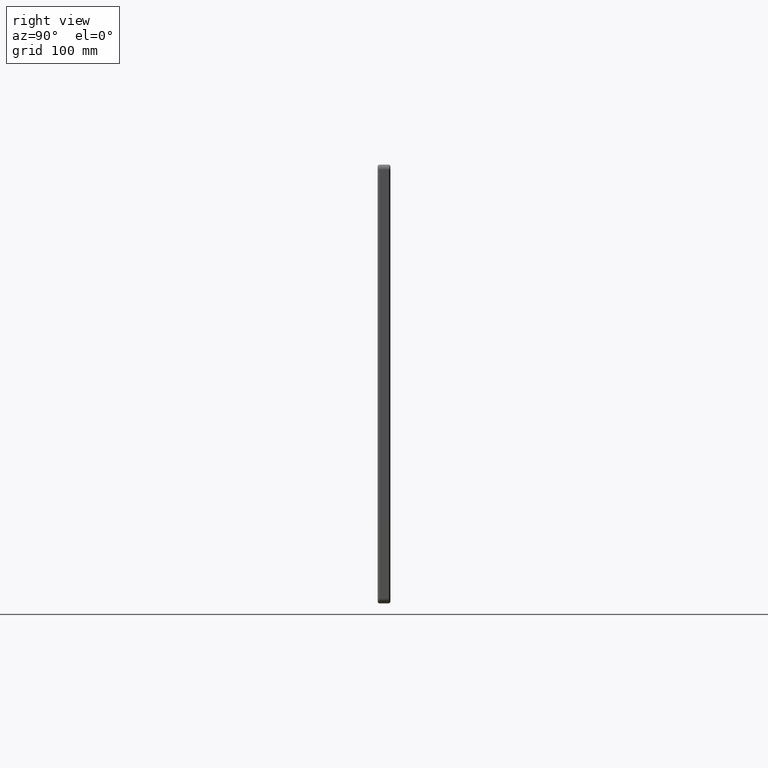
[diagram: clean part render]
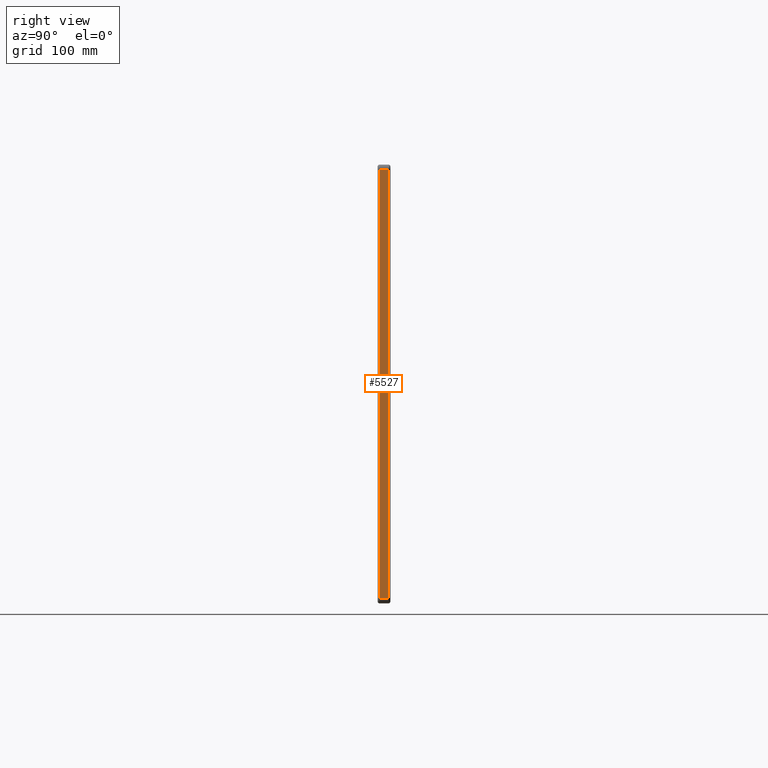
[diagram: same view with one face highlighted and labeled with its STEP entity id]
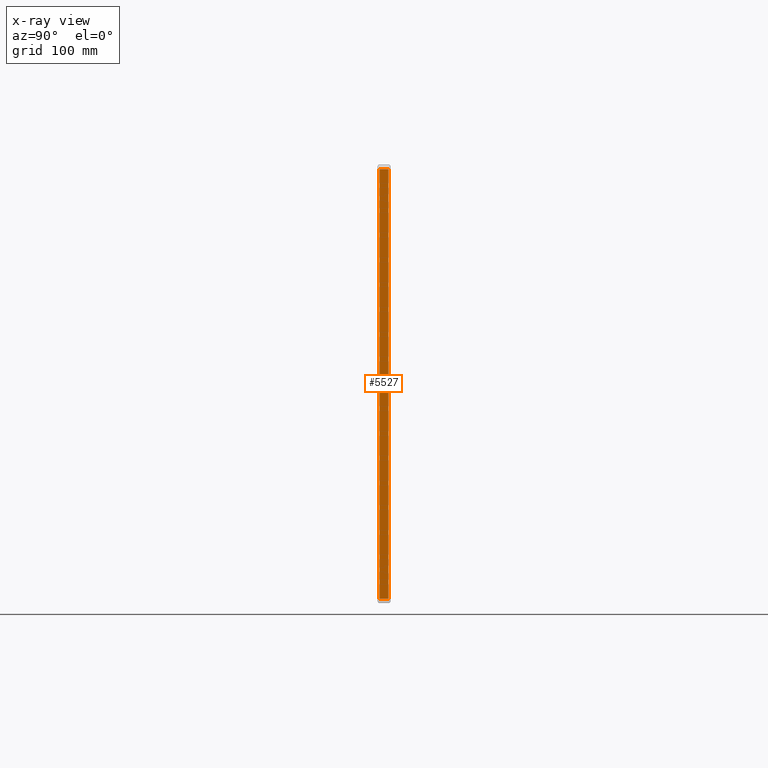
[diagram: x-ray of the same camera — body ghosted, the highlighted face saturated]
A machine part, right view. The second image highlights one B-rep face of the part: STEP entity #5527.
The next image is the same camera in x-ray: the body ghosted, the highlighted face saturated — about 0% of this face is hidden behind the body in this view.
In plain terms, the highlighted planar face has unit normal (-1, 0, 0).
Its self-contained STEP definition (entity closure, byte-faithful):
#429 = VECTOR ( 'NONE', #13470, 1000.000000000000000 ) ;
#1456 = EDGE_CURVE ( 'NONE', #4858, #24342, #4433, .T. ) ;
#2605 = VECTOR ( 'NONE', #9554, 1000.000000000000000 ) ;
#3300 = ORIENTED_EDGE ( 'NONE', *, *, #4071, .T. ) ;
#3796 = ORIENTED_EDGE ( 'NONE', *, *, #12236, .F. ) ;
#4071 = EDGE_CURVE ( 'NONE', #9421, #4858, #18876, .T. ) ;
#4402 = VERTEX_POINT ( 'NONE', #13886 ) ;
#4433 = LINE ( 'NONE', #26498, #2605 ) ;
#4850 = DIRECTION ( 'NONE',  ( -1.000000000000000000, 0.0000000000000000000, 0.0000000000000000000 ) ) ;
#4858 = VERTEX_POINT ( 'NONE', #6451 ) ;
#5527 = ADVANCED_FACE ( 'NONE', ( #17310 ), #14271, .F. ) ;
#6451 = CARTESIAN_POINT ( 'NONE',  ( 299.9999999999997700, 11.00000000000000000, 220.0000000000000300 ) ) ;
#7302 = CARTESIAN_POINT ( 'NONE',  ( 299.9999999999997700, 13.00000000000000000, -220.0000000000000300 ) ) ;
#9421 = VERTEX_POINT ( 'NONE', #12990 ) ;
#9554 = DIRECTION ( 'NONE',  ( -0.0000000000000000000, -1.000000000000000000, -0.0000000000000000000 ) ) ;
#9718 = CARTESIAN_POINT ( 'NONE',  ( 299.9999999999997700, 2.000000000000001800, 220.0000000000000300 ) ) ;
#10183 = DIRECTION ( 'NONE',  ( -0.0000000000000000000, -1.000000000000000000, -0.0000000000000000000 ) ) ;
#12236 = EDGE_CURVE ( 'NONE', #9421, #4402, #14802, .T. ) ;
#12757 = CARTESIAN_POINT ( 'NONE',  ( 299.9999999999998900, 13.00000000000000000, -220.0000000000000300 ) ) ;
#12990 = CARTESIAN_POINT ( 'NONE',  ( 299.9999999999998900, 11.00000000000000000, -220.0000000000000300 ) ) ;
#13470 = DIRECTION ( 'NONE',  ( 0.0000000000000000000, 0.0000000000000000000, -1.000000000000000000 ) ) ;
#13886 = CARTESIAN_POINT ( 'NONE',  ( 299.9999999999998900, 2.000000000000003600, -220.0000000000000300 ) ) ;
#14233 = ORIENTED_EDGE ( 'NONE', *, *, #1456, .T. ) ;
#14271 = PLANE ( 'NONE',  #18863 ) ;
#14802 = LINE ( 'NONE', #12757, #27701 ) ;
#15681 = ORIENTED_EDGE ( 'NONE', *, *, #27668, .T. ) ;
#17310 = FACE_OUTER_BOUND ( 'NONE', #26122, .T. ) ;
#18863 = AXIS2_PLACEMENT_3D ( 'NONE', #7302, #4850, #23807 ) ;
#18876 = LINE ( 'NONE', #28010, #21124 ) ;
#20838 = DIRECTION ( 'NONE',  ( -0.0000000000000000000, -0.0000000000000000000, 1.000000000000000000 ) ) ;
#21124 = VECTOR ( 'NONE', #20838, 1000.000000000000000 ) ;
#23807 = DIRECTION ( 'NONE',  ( 0.0000000000000000000, 0.0000000000000000000, 1.000000000000000000 ) ) ;
#24342 = VERTEX_POINT ( 'NONE', #9718 ) ;
#26122 = EDGE_LOOP ( 'NONE', ( #14233, #15681, #3796, #3300 ) ) ;
#26498 = CARTESIAN_POINT ( 'NONE',  ( 299.9999999999997700, 13.00000000000000000, 220.0000000000000300 ) ) ;
#27608 = CARTESIAN_POINT ( 'NONE',  ( 299.9999999999997700, 2.000000000000000000, -220.0000000000000300 ) ) ;
#27668 = EDGE_CURVE ( 'NONE', #24342, #4402, #28841, .T. ) ;
#27701 = VECTOR ( 'NONE', #10183, 1000.000000000000000 ) ;
#28010 = CARTESIAN_POINT ( 'NONE',  ( 299.9999999999997700, 11.00000000000000000, 220.0000000000000300 ) ) ;
#28841 = LINE ( 'NONE', #27608, #429 ) ;